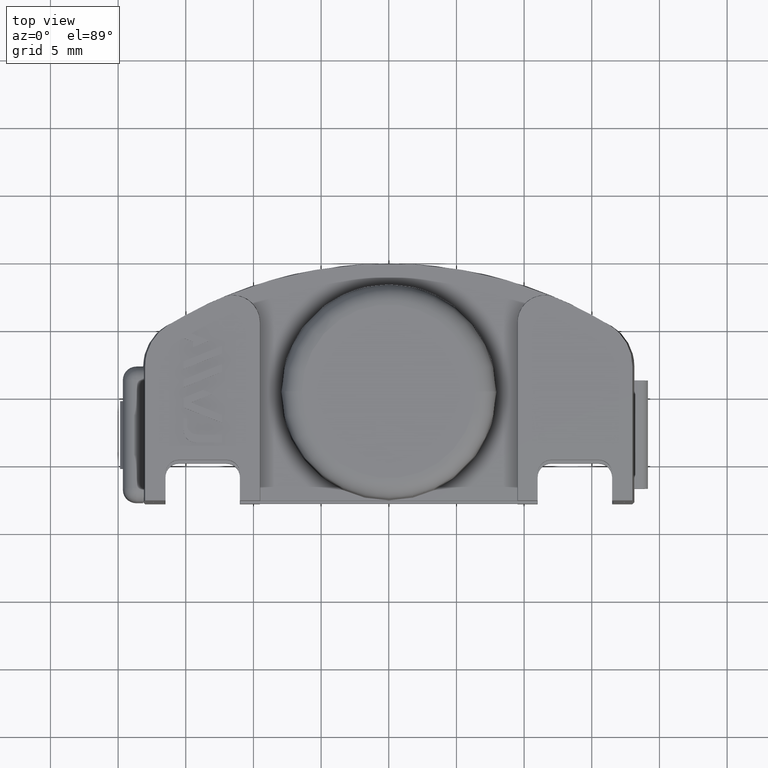
[diagram: clean part render]
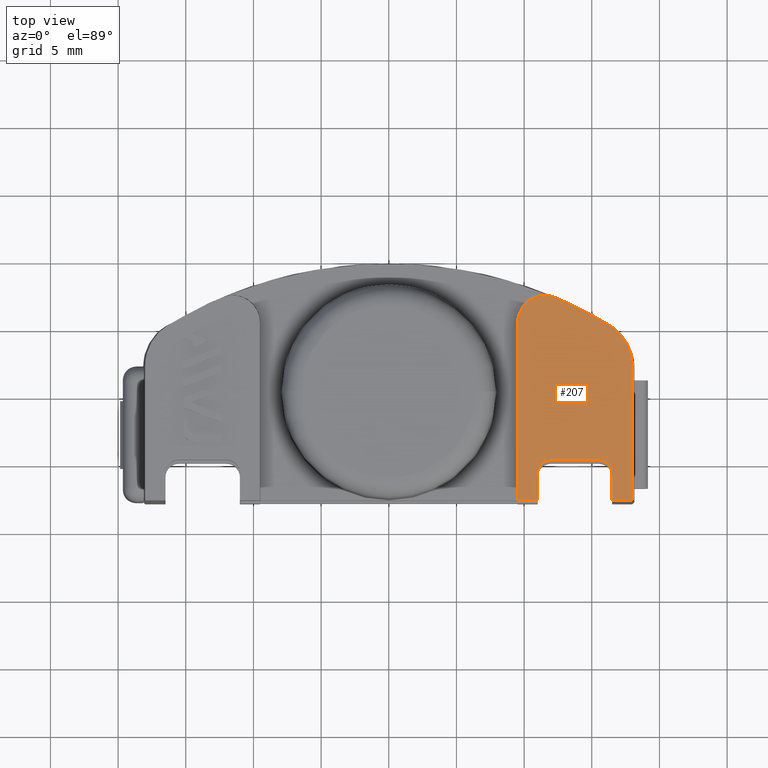
[diagram: same view with one face highlighted and labeled with its STEP entity id]
A machine part, top view. The second image highlights one B-rep face of the part: STEP entity #207.
In plain terms, the highlighted planar face has unit normal (0, -0, -1).
Its self-contained STEP definition (entity closure, byte-faithful):
#207=ADVANCED_FACE('',(#526),#527,.F.);
#526=FACE_OUTER_BOUND('',#998,.T.);
#527=PLANE('',#999);
#998=EDGE_LOOP('',(#2153,#2154,#2155,#2156,#2157,#2158,#2159,#2160,#2161,#2162,#2163,#2164));
#999=AXIS2_PLACEMENT_3D('',#2165,#2166,#2167);
#2153=ORIENTED_EDGE('',*,*,#3097,.F.);
#2154=ORIENTED_EDGE('',*,*,#2837,.T.);
#2155=ORIENTED_EDGE('',*,*,#2839,.T.);
#2156=ORIENTED_EDGE('',*,*,#3002,.F.);
#2157=ORIENTED_EDGE('',*,*,#3092,.F.);
#2158=ORIENTED_EDGE('',*,*,#3012,.T.);
#2159=ORIENTED_EDGE('',*,*,#3090,.T.);
#2160=ORIENTED_EDGE('',*,*,#3008,.T.);
#2161=ORIENTED_EDGE('',*,*,#3095,.T.);
#2162=ORIENTED_EDGE('',*,*,#3005,.F.);
#2163=ORIENTED_EDGE('',*,*,#2852,.F.);
#2164=ORIENTED_EDGE('',*,*,#2848,.T.);
#2165=CARTESIAN_POINT('',(0.0,-22.0,-3.5));
#2166=DIRECTION('',(0.0,-1.22464679914735E-16,-1.0));
#2167=DIRECTION('',(-1.0,-6.93889390390723E-17,8.49769420904306E-33));
#2837=EDGE_CURVE('',#3376,#3374,#3377,.T.);
#2839=EDGE_CURVE('',#3374,#3379,#3380,.T.);
#2848=EDGE_CURVE('',#3397,#3395,#3398,.T.);
#2852=EDGE_CURVE('',#3397,#3401,#3404,.T.);
#3002=EDGE_CURVE('',#3659,#3379,#3661,.T.);
#3005=EDGE_CURVE('',#3401,#3664,#3665,.T.);
#3008=EDGE_CURVE('',#3669,#3670,#3671,.T.);
#3012=EDGE_CURVE('',#3677,#3678,#3679,.T.);
#3090=EDGE_CURVE('',#3678,#3669,#3791,.T.);
#3092=EDGE_CURVE('',#3677,#3659,#3793,.T.);
#3095=EDGE_CURVE('',#3670,#3664,#3796,.T.);
#3097=EDGE_CURVE('',#3376,#3395,#3798,.T.);
#3374=VERTEX_POINT('',#4247);
#3376=VERTEX_POINT('',#4255);
#3377=B_SPLINE_CURVE_WITH_KNOTS('',3,(#4256,#4257,#4258,#4259,#4260,#4261,#4262,#4263,#4264,#4265,#4266,#4267,#4268,#4269,#4270,#4271,#4272,#4273),.UNSPECIFIED.,.F.,.F.,(4,2,2,2,2,2,2,2,4),(0.0,0.0004904683696725,0.000980936739344999,0.0014714051090175,0.00196187347869,0.0024523418483625,0.002942810218035,0.0034332785877075,0.00392374695738),.UNSPECIFIED.);
#3379=VERTEX_POINT('',#4278);
#3380=LINE('',#4279,#4280);
#3395=VERTEX_POINT('',#4344);
#3397=VERTEX_POINT('',#4352);
#3398=B_SPLINE_CURVE_WITH_KNOTS('',3,(#4353,#4354,#4355,#4356,#4357,#4358,#4359,#4360,#4361,#4362,#4363,#4364),.UNSPECIFIED.,.F.,.F.,(4,2,2,2,2,4),(0.0,0.00089400454886881,0.00134100682330321,0.00178800909773762,0.00268201364660642,0.00357601819547523),.UNSPECIFIED.);
#3401=VERTEX_POINT('',#4373);
#3404=LINE('',#4378,#4379);
#3659=VERTEX_POINT('',#4786);
#3661=LINE('',#4789,#4790);
#3664=VERTEX_POINT('',#4795);
#3665=LINE('',#4796,#4797);
#3669=VERTEX_POINT('',#4803);
#3670=VERTEX_POINT('',#4804);
#3671=CIRCLE('',#4805,1.0);
#3677=VERTEX_POINT('',#4813);
#3678=VERTEX_POINT('',#4814);
#3679=CIRCLE('',#4815,1.0);
#3791=LINE('',#4997,#4998);
#3793=LINE('',#5001,#5002);
#3796=LINE('',#5007,#5008);
#3798=CIRCLE('',#5011,31.5);
#4247=CARTESIAN_POINT('',(9.52595410532664,5.1556140745887,-3.49999999999955));
#4255=CARTESIAN_POINT('',(12.3069223832157,6.99637324655455,-3.5));
#4256=CARTESIAN_POINT('',(12.3069223832157,6.99637324655455,-3.5));
#4257=CARTESIAN_POINT('',(12.1542612377202,7.06116717276632,-3.5));
#4258=CARTESIAN_POINT('',(11.9968499368737,7.10592119766268,-3.5));
#4259=CARTESIAN_POINT('',(11.6728402000465,7.15667066634394,-3.5));
#4260=CARTESIAN_POINT('',(11.5056613102076,7.16196539311224,-3.5));
#4261=CARTESIAN_POINT('',(11.1800212046543,7.13212355993971,-3.5));
#4262=CARTESIAN_POINT('',(11.0171766714361,7.09671884897746,-3.5));
#4263=CARTESIAN_POINT('',(10.707033600273,6.9876714913607,-3.5));
#4264=CARTESIAN_POINT('',(10.5605525615437,6.91500209184468,-3.5));
#4265=CARTESIAN_POINT('',(10.2850163128656,6.7328546858614,-3.5));
#4266=CARTESIAN_POINT('',(10.1596038961396,6.6253979469419,-3.5));
#4267=CARTESIAN_POINT('',(9.9387924994062,6.38366006328803,-3.5));
#4268=CARTESIAN_POINT('',(9.84191361676355,6.24699886472753,-3.5));
#4269=CARTESIAN_POINT('',(9.6869518929952,5.95877954708142,-3.5));
#4270=CARTESIAN_POINT('',(9.62690983221632,5.80448615851803,-3.5));
#4271=CARTESIAN_POINT('',(9.54625772853421,5.48438336790063,-3.5));
#4272=CARTESIAN_POINT('',(9.52595410532663,5.32145659892322,-3.5));
#4273=CARTESIAN_POINT('',(9.52595410532663,5.1556140745887,-3.5));
#4278=CARTESIAN_POINT('',(9.52595410532664,-8.0,-3.49999999999955));
#4279=CARTESIAN_POINT('',(9.52595410532664,12.0,-3.49999999999956));
#4280=VECTOR('',#5660,1000.0);
#4344=CARTESIAN_POINT('',(16.312789135722,4.94703899528615,-3.5));
#4352=CARTESIAN_POINT('',(18.0,1.95337956964992,-3.5));
#4353=CARTESIAN_POINT('',(18.0,1.95337956964992,-3.5));
#4354=CARTESIAN_POINT('',(18.0,2.25567128624325,-3.5));
#4355=CARTESIAN_POINT('',(17.9614798588373,2.55140321331794,-3.5));
#4356=CARTESIAN_POINT('',(17.8476959048516,2.98546394362179,-3.5));
#4357=CARTESIAN_POINT('',(17.7998515222921,3.12954268408415,-3.5));
#4358=CARTESIAN_POINT('',(17.6870301663316,3.40772174245532,-3.5));
#4359=CARTESIAN_POINT('',(17.6221465016413,3.54211563882421,-3.5));
#4360=CARTESIAN_POINT('',(17.4026256048428,3.93151471084533,-3.5));
#4361=CARTESIAN_POINT('',(17.2200379183661,4.17594229649235,-3.5));
#4362=CARTESIAN_POINT('',(16.8041842722245,4.6045381667893,-3.5));
#4363=CARTESIAN_POINT('',(16.5713880490948,4.79049231328089,-3.5));
#4364=CARTESIAN_POINT('',(16.312789135722,4.94703899528615,-3.5));
#4373=CARTESIAN_POINT('',(18.0,-8.0,-3.5));
#4378=CARTESIAN_POINT('',(18.0,-8.0,-3.5));
#4379=VECTOR('',#5665,1000.0);
#4786=CARTESIAN_POINT('',(11.0,-8.0,-3.5));
#4789=CARTESIAN_POINT('',(-18.0,-8.0,-3.5));
#4790=VECTOR('',#5887,1000.0);
#4795=CARTESIAN_POINT('',(16.5,-8.0,-3.5));
#4796=CARTESIAN_POINT('',(-18.0,-8.0,-3.5));
#4797=VECTOR('',#5890,1000.0);
#4803=CARTESIAN_POINT('',(15.5,-5.0,-3.5));
#4804=CARTESIAN_POINT('',(16.5,-6.0,-3.5));
#4805=AXIS2_PLACEMENT_3D('',#5893,#5894,#5895);
#4813=CARTESIAN_POINT('',(11.0,-6.0,-3.5));
#4814=CARTESIAN_POINT('',(12.0,-5.0,-3.5));
#4815=AXIS2_PLACEMENT_3D('',#5901,#5902,#5903);
#4997=CARTESIAN_POINT('',(0.0,-5.0,-3.5));
#4998=VECTOR('',#5995,1000.0);
#5001=CARTESIAN_POINT('',(11.0,-22.0,-3.5));
#5002=VECTOR('',#5997,1000.0);
#5007=CARTESIAN_POINT('',(16.5,-22.0,-3.5));
#5008=VECTOR('',#6000,1000.0);
#5011=AXIS2_PLACEMENT_3D('',#6002,#6003,#6004);
#5660=DIRECTION('',(0.0,-1.0,1.22464679914735E-16));
#5665=DIRECTION('',(6.93889390390723E-17,-1.0,1.22464679914735E-16));
#5887=DIRECTION('',(-1.0,0.0,0.0));
#5890=DIRECTION('',(-1.0,0.0,0.0));
#5893=CARTESIAN_POINT('',(15.5,-6.0,-3.5));
#5894=DIRECTION('',(0.0,-1.22464679914735E-16,-1.0));
#5895=DIRECTION('',(1.0,0.0,0.0));
#5901=CARTESIAN_POINT('',(12.0,-6.0,-3.5));
#5902=DIRECTION('',(0.0,-1.22464679914735E-16,-1.0));
#5903=DIRECTION('',(1.0,0.0,0.0));
#5995=DIRECTION('',(1.0,0.0,0.0));
#5997=DIRECTION('',(6.12303176911189E-17,-1.0,1.22464679914735E-16));
#6000=DIRECTION('',(6.12303176911189E-17,-1.0,1.22464679914735E-16));
#6002=CARTESIAN_POINT('',(0.0,-22.0,-3.5));
#6003=DIRECTION('',(0.0,-1.22464679914735E-16,-1.0));
#6004=DIRECTION('',(1.0,-4.07522340388203E-17,4.9907092973745E-33));